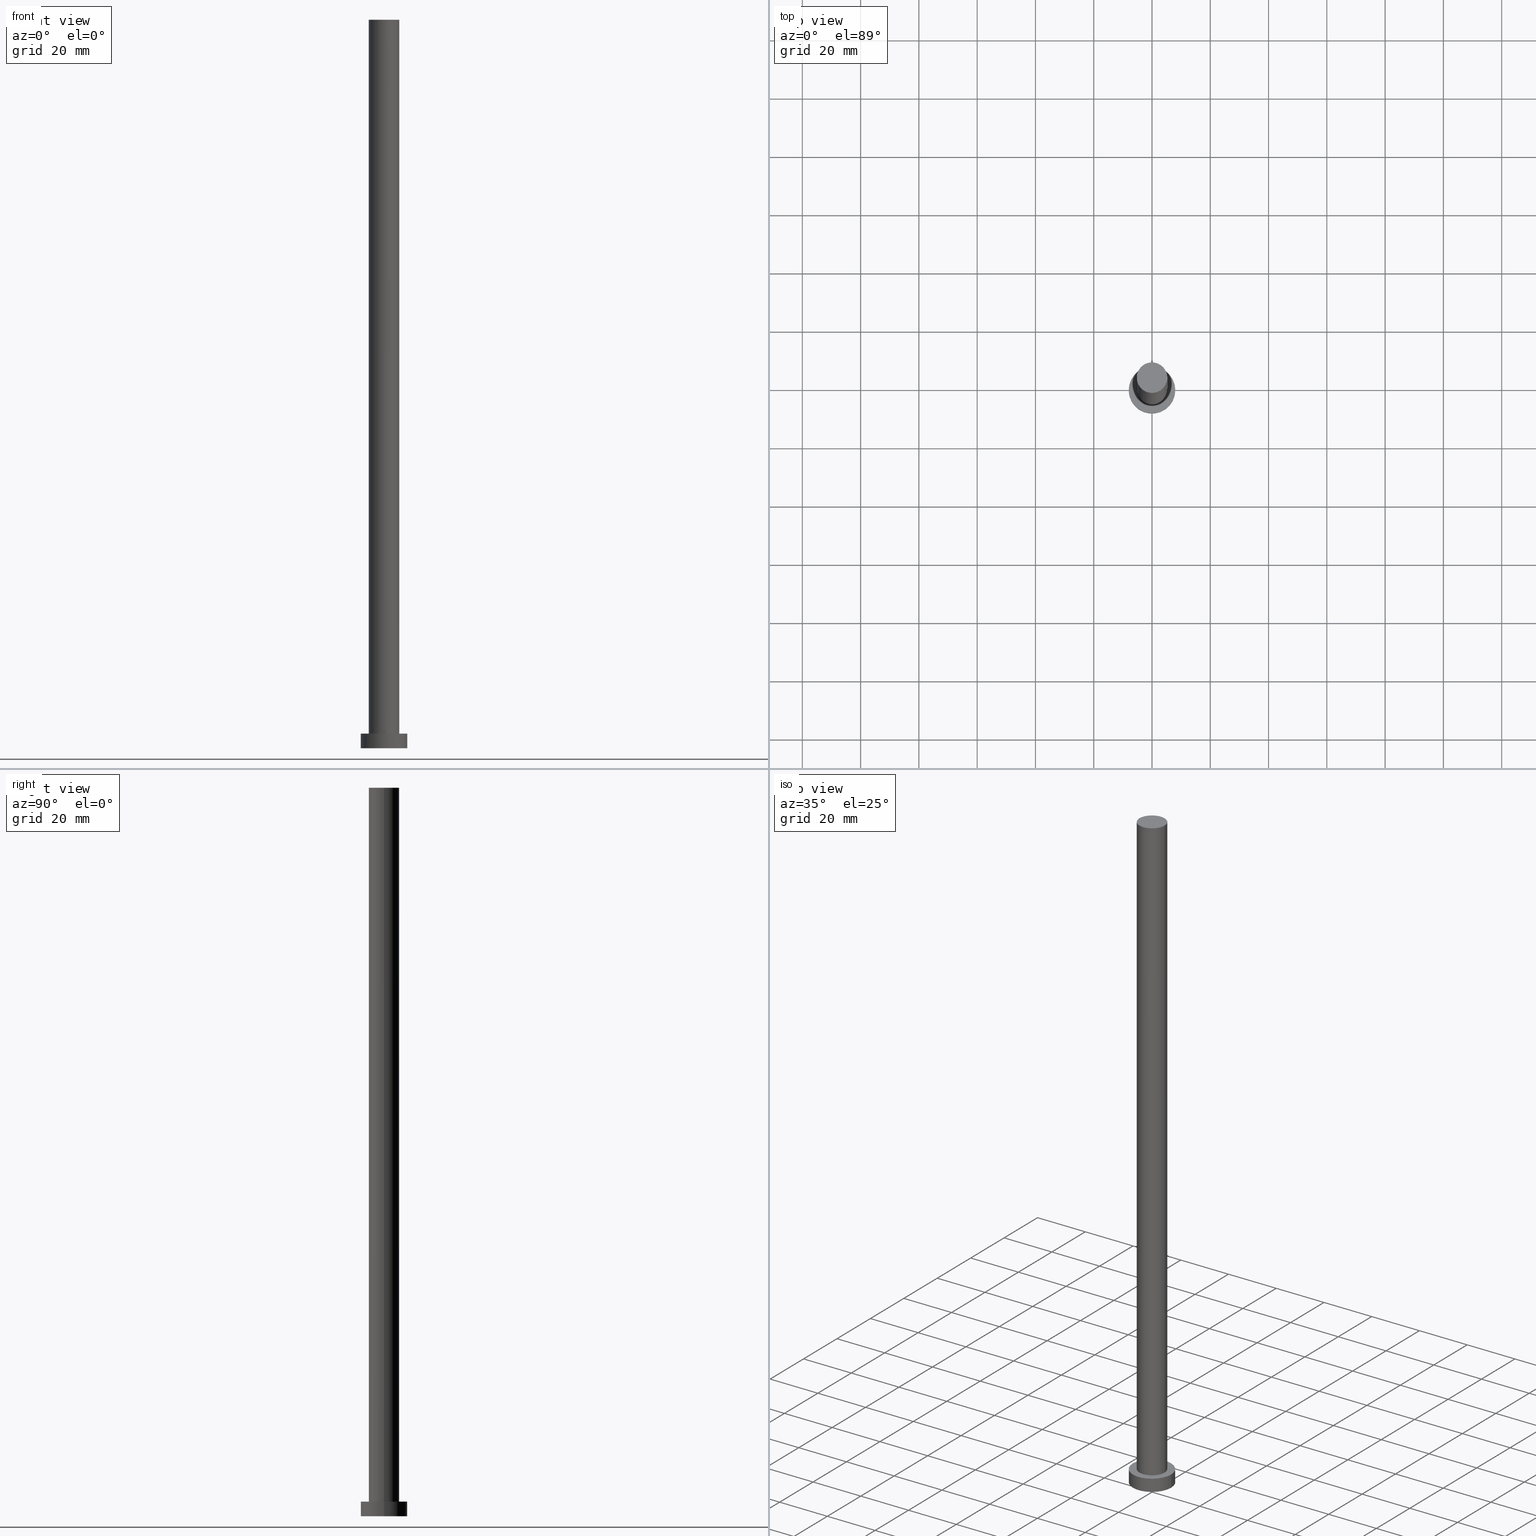
[diagram: canonical four-view strip — front | top / right | iso, engineering-drawing reading convention]
A machine part, canonical four-view strip (front | top / right | iso — engineering-drawing reading convention). The complete STEP part file that produces these views, byte-faithful:
ISO-10303-21;
HEADER;
FILE_DESCRIPTION (( 'STEP AP203' ),
    '1' );
FILE_NAME ('3e7c.STEP',
    '2023-02-13T11:11:58',
    ( '' ),
    ( '' ),
    'SwSTEP 2.0',
    'SolidWorks 2019',
    '' );
FILE_SCHEMA (( 'CONFIG_CONTROL_DESIGN' ));
ENDSEC;

DATA;
#1 = APPROVAL_STATUS ( 'not_yet_approved' ) ;
#2 = ORIENTED_EDGE ( 'NONE', *, *, #12, .F. ) ;
#3 = ORIENTED_EDGE ( 'NONE', *, *, #80, .F. ) ;
#4 = ORIENTED_EDGE ( 'NONE', *, *, #190, .F. ) ;
#5 = ORIENTED_EDGE ( 'NONE', *, *, #108, .F. ) ;
#6 = CC_DESIGN_PERSON_AND_ORGANIZATION_ASSIGNMENT ( #73, #109, ( #56 ) ) ;
#7 = FACE_OUTER_BOUND ( 'NONE', #255, .T. ) ;
#8 = CIRCLE ( 'NONE', #232, 5.250000000000000888 ) ;
#9 = DIRECTION ( 'NONE',  ( 0.000000000000000000, 0.000000000000000000, 1.000000000000000000 ) ) ;
#10 = CARTESIAN_POINT ( 'NONE',  ( -5.250000000000000888, 0.000000000000000000, 250.0000000000000000 ) ) ;
#11 = CARTESIAN_POINT ( 'NONE',  ( 5.250000000000000888, 6.429395695523605139E-16, 250.0000000000000000 ) ) ;
#12 = EDGE_CURVE ( 'NONE', #81, #194, #206, .T. ) ;
#13 = APPROVAL ( #110, 'NEUR�EN�' ) ;
#14 = AXIS2_PLACEMENT_3D ( 'NONE', #178, #9, #85 ) ;
#15 = FACE_OUTER_BOUND ( 'NONE', #39, .T. ) ;
#16 = LOCAL_TIME ( 12, 11, 58.00000000000000000, #37 ) ;
#17 = APPLICATION_PROTOCOL_DEFINITION ( 'international standard', 'config_control_design', 1994, #252 ) ;
#18 = COORDINATED_UNIVERSAL_TIME_OFFSET ( 1, 0, .AHEAD. ) ;
#19 = CARTESIAN_POINT ( 'NONE',  ( -5.250000000000000888, 0.000000000000000000, 5.000000000000000000 ) ) ;
#20 = MANIFOLD_SOLID_BREP ( 'P�idat vysunut�m3', #64 ) ;
#21 = ORIENTED_EDGE ( 'NONE', *, *, #48, .F. ) ;
#22 = AXIS2_PLACEMENT_3D ( 'NONE', #164, #131, #55 ) ;
#23 = SHAPE_DEFINITION_REPRESENTATION ( #187, #90 ) ;
#24 = ORIENTED_EDGE ( 'NONE', *, *, #46, .F. ) ;
#25 = ADVANCED_FACE ( 'NONE', ( #199 ), #50, .T. ) ;
#26 = FACE_OUTER_BOUND ( 'NONE', #117, .T. ) ;
#27 = CARTESIAN_POINT ( 'NONE',  ( 0.000000000000000000, 0.000000000000000000, 250.0000000000000000 ) ) ;
#28 = DIRECTION ( 'NONE',  ( -1.000000000000000000, 0.000000000000000000, 0.000000000000000000 ) ) ;
#29 = LOCAL_TIME ( 12, 11, 58.00000000000000000, #236 ) ;
#30 = EDGE_LOOP ( 'NONE', ( #76, #98, #107, #192 ) ) ;
#31 = DIRECTION ( 'NONE',  ( 1.000000000000000000, 0.000000000000000000, 0.000000000000000000 ) ) ;
#32 = CC_DESIGN_DATE_AND_TIME_ASSIGNMENT ( #166, #68, ( #212 ) ) ;
#33 = LOCAL_TIME ( 12, 11, 58.00000000000000000, #18 ) ;
#34 =( NAMED_UNIT ( * ) PLANE_ANGLE_UNIT ( ) SI_UNIT ( $, .RADIAN. ) );
#35 = VECTOR ( 'NONE', #182, 1000.000000000000000 ) ;
#36 = ORIENTED_EDGE ( 'NONE', *, *, #165, .F. ) ;
#37 = COORDINATED_UNIVERSAL_TIME_OFFSET ( 1, 0, .AHEAD. ) ;
#38 = EDGE_LOOP ( 'NONE', ( #132, #100 ) ) ;
#39 = EDGE_LOOP ( 'NONE', ( #3, #21, #174, #58 ) ) ;
#40 = AXIS2_PLACEMENT_3D ( 'NONE', #45, #125, #31 ) ;
#41 = CALENDAR_DATE ( 2023, 13, 2 ) ;
#42 = DIRECTION ( 'NONE',  ( -0.000000000000000000, -0.000000000000000000, -1.000000000000000000 ) ) ;
#43 = AXIS2_PLACEMENT_3D ( 'NONE', #239, #216, #160 ) ;
#44 = FACE_OUTER_BOUND ( 'NONE', #195, .T. ) ;
#45 = CARTESIAN_POINT ( 'NONE',  ( 0.000000000000000000, 0.000000000000000000, 5.000000000000000000 ) ) ;
#46 = EDGE_CURVE ( 'NONE', #194, #81, #114, .T. ) ;
#47 = LINE ( 'NONE', #106, #119 ) ;
#48 = EDGE_CURVE ( 'NONE', #78, #155, #248, .T. ) ;
#49 = AXIS2_PLACEMENT_3D ( 'NONE', #61, #223, #66 ) ;
#50 = CYLINDRICAL_SURFACE ( 'NONE', #158, 5.250000000000000888 ) ;
#51 = CALENDAR_DATE ( 2023, 13, 2 ) ;
#52 = EDGE_CURVE ( 'NONE', #215, #172, #8, .T. ) ;
#53 = DIRECTION ( 'NONE',  ( 1.000000000000000000, 0.000000000000000000, 0.000000000000000000 ) ) ;
#54 = CARTESIAN_POINT ( 'NONE',  ( 5.250000000000000888, 6.429395695523605139E-16, 250.0000000000000000 ) ) ;
#55 = DIRECTION ( 'NONE',  ( -1.000000000000000000, 0.000000000000000000, 0.000000000000000000 ) ) ;
#56 = PRODUCT ( '3e7c', '3e7c', '', ( #146 ) ) ;
#57 = ORIENTED_EDGE ( 'NONE', *, *, #52, .T. ) ;
#58 = ORIENTED_EDGE ( 'NONE', *, *, #12, .T. ) ;
#59 = CALENDAR_DATE ( 2023, 13, 2 ) ;
#60 = EDGE_CURVE ( 'NONE', #155, #78, #148, .T. ) ;
#61 = CARTESIAN_POINT ( 'NONE',  ( 0.000000000000000000, 0.000000000000000000, 0.000000000000000000 ) ) ;
#62 = EDGE_CURVE ( 'NONE', #203, #215, #162, .T. ) ;
#63 = FACE_OUTER_BOUND ( 'NONE', #38, .T. ) ;
#64 = CLOSED_SHELL ( 'NONE', ( #133, #208, #253, #168, #116, #25, #99 ) ) ;
#65 = DIRECTION ( 'NONE',  ( 1.000000000000000000, 0.000000000000000000, 0.000000000000000000 ) ) ;
#66 = DIRECTION ( 'NONE',  ( 1.000000000000000000, 0.000000000000000000, 0.000000000000000000 ) ) ;
#67 = DIRECTION ( 'NONE',  ( 1.000000000000000000, 0.000000000000000000, 0.000000000000000000 ) ) ;
#68 = DATE_TIME_ROLE ( 'creation_date' ) ;
#69 = DIRECTION ( 'NONE',  ( 0.000000000000000000, 0.000000000000000000, 1.000000000000000000 ) ) ;
#70 = PRODUCT_RELATED_PRODUCT_CATEGORY ( 'detail', '', ( #56 ) ) ;
#71 = CIRCLE ( 'NONE', #134, 5.250000000000000888 ) ;
#72 = CC_DESIGN_SECURITY_CLASSIFICATION ( #185, ( #120 ) ) ;
#73 = PERSON_AND_ORGANIZATION ( #144, #217 ) ;
#74 = CC_DESIGN_PERSON_AND_ORGANIZATION_ASSIGNMENT ( #91, #229, ( #212 ) ) ;
#75 = PERSON_AND_ORGANIZATION_ROLE ( 'creator' ) ;
#76 = ORIENTED_EDGE ( 'NONE', *, *, #62, .F. ) ;
#77 = PERSON_AND_ORGANIZATION ( #144, #217 ) ;
#78 = VERTEX_POINT ( 'NONE', #218 ) ;
#79 = VECTOR ( 'NONE', #243, 1000.000000000000000 ) ;
#80 = EDGE_CURVE ( 'NONE', #155, #194, #47, .T. ) ;
#81 = VERTEX_POINT ( 'NONE', #86 ) ;
#82 = CC_DESIGN_PERSON_AND_ORGANIZATION_ASSIGNMENT ( #213, #233, ( #120 ) ) ;
#83 = CARTESIAN_POINT ( 'NONE',  ( 0.000000000000000000, 0.000000000000000000, 5.000000000000000000 ) ) ;
#84 = LINE ( 'NONE', #200, #191 ) ;
#85 = DIRECTION ( 'NONE',  ( 1.000000000000000000, 0.000000000000000000, -0.000000000000000000 ) ) ;
#86 = CARTESIAN_POINT ( 'NONE',  ( -8.000000000000000000, 0.000000000000000000, 0.000000000000000000 ) ) ;
#87 = DESIGN_CONTEXT ( 'detailed design', #252, 'design' ) ;
#88 = APPROVAL_DATE_TIME ( #186, #13 ) ;
#89 = AXIS2_PLACEMENT_3D ( 'NONE', #128, #205, #53 ) ;
#90 = ADVANCED_BREP_SHAPE_REPRESENTATION ( '3e7c', ( #20, #89 ), #197 ) ;
#91 = PERSON_AND_ORGANIZATION ( #144, #217 ) ;
#92 = CARTESIAN_POINT ( 'NONE',  ( 5.250000000000000888, 6.429395695523605139E-16, 5.000000000000000000 ) ) ;
#93 = DIRECTION ( 'NONE',  ( 1.000000000000000000, 0.000000000000000000, 0.000000000000000000 ) ) ;
#94 = AXIS2_PLACEMENT_3D ( 'NONE', #184, #121, #65 ) ;
#95 = CC_DESIGN_DATE_AND_TIME_ASSIGNMENT ( #96, #151, ( #185 ) ) ;
#96 = DATE_AND_TIME ( #41, #152 ) ;
#97 = AXIS2_PLACEMENT_3D ( 'NONE', #247, #189, #149 ) ;
#98 = ORIENTED_EDGE ( 'NONE', *, *, #207, .F. ) ;
#99 = ADVANCED_FACE ( 'NONE', ( #63 ), #122, .T. ) ;
#100 = ORIENTED_EDGE ( 'NONE', *, *, #108, .T. ) ;
#101 = ORIENTED_EDGE ( 'NONE', *, *, #52, .F. ) ;
#102 = AXIS2_PLACEMENT_3D ( 'NONE', #126, #69, #93 ) ;
#103 = PLANE ( 'NONE',  #14 ) ;
#104 = DIRECTION ( 'NONE',  ( 0.000000000000000000, 0.000000000000000000, 1.000000000000000000 ) ) ;
#105 = CARTESIAN_POINT ( 'NONE',  ( -5.250000000000000888, 0.000000000000000000, 250.0000000000000000 ) ) ;
#106 = CARTESIAN_POINT ( 'NONE',  ( 8.000000000000000000, 9.797174393178825657E-16, 5.000000000000000000 ) ) ;
#107 = ORIENTED_EDGE ( 'NONE', *, *, #165, .T. ) ;
#108 = EDGE_CURVE ( 'NONE', #203, #157, #71, .T. ) ;
#109 = PERSON_AND_ORGANIZATION_ROLE ( 'design_owner' ) ;
#110 = APPROVAL_STATUS ( 'not_yet_approved' ) ;
#111 = CC_DESIGN_APPROVAL ( #180, ( #185 ) ) ;
#112 = CYLINDRICAL_SURFACE ( 'NONE', #254, 8.000000000000000000 ) ;
#113 = DATE_AND_TIME ( #211, #16 ) ;
#114 = CIRCLE ( 'NONE', #49, 8.000000000000000000 ) ;
#115 = ORIENTED_EDGE ( 'NONE', *, *, #46, .T. ) ;
#116 = ADVANCED_FACE ( 'NONE', ( #44 ), #219, .F. ) ;
#117 = EDGE_LOOP ( 'NONE', ( #196, #154 ) ) ;
#118 = LINE ( 'NONE', #10, #35 ) ;
#119 = VECTOR ( 'NONE', #242, 1000.000000000000000 ) ;
#120 = PRODUCT_DEFINITION_FORMATION_WITH_SPECIFIED_SOURCE ( 'LIBOVOLN�', '', #56, .NOT_KNOWN. ) ;
#121 = DIRECTION ( 'NONE',  ( 0.000000000000000000, 0.000000000000000000, 1.000000000000000000 ) ) ;
#122 = PLANE ( 'NONE',  #181 ) ;
#123 = CYLINDRICAL_SURFACE ( 'NONE', #221, 5.250000000000000888 ) ;
#124 = APPROVAL_PERSON_ORGANIZATION ( #251, #180, #230 ) ;
#125 = DIRECTION ( 'NONE',  ( 0.000000000000000000, 0.000000000000000000, 1.000000000000000000 ) ) ;
#126 = CARTESIAN_POINT ( 'NONE',  ( 0.000000000000000000, 0.000000000000000000, 5.000000000000000000 ) ) ;
#127 = CC_DESIGN_PERSON_AND_ORGANIZATION_ASSIGNMENT ( #170, #75, ( #120 ) ) ;
#128 = CARTESIAN_POINT ( 'NONE',  ( 0.000000000000000000, 0.000000000000000000, 0.000000000000000000 ) ) ;
#129 = CC_DESIGN_APPROVAL ( #238, ( #120 ) ) ;
#130 = CYLINDRICAL_SURFACE ( 'NONE', #22, 8.000000000000000000 ) ;
#131 = DIRECTION ( 'NONE',  ( -0.000000000000000000, -0.000000000000000000, -1.000000000000000000 ) ) ;
#132 = ORIENTED_EDGE ( 'NONE', *, *, #207, .T. ) ;
#133 = ADVANCED_FACE ( 'NONE', ( #7 ), #123, .T. ) ;
#134 = AXIS2_PLACEMENT_3D ( 'NONE', #159, #179, #67 ) ;
#135 = APPROVAL_DATE_TIME ( #210, #180 ) ;
#136 = CC_DESIGN_APPROVAL ( #13, ( #212 ) ) ;
#137 = ORIENTED_EDGE ( 'NONE', *, *, #62, .T. ) ;
#138 = DIRECTION ( 'NONE',  ( 0.000000000000000000, 0.000000000000000000, 1.000000000000000000 ) ) ;
#139 = DIRECTION ( 'NONE',  ( 0.000000000000000000, 0.000000000000000000, 1.000000000000000000 ) ) ;
#140 = DIRECTION ( 'NONE',  ( 1.000000000000000000, 0.000000000000000000, -0.000000000000000000 ) ) ;
#141 = DIRECTION ( 'NONE',  ( -0.000000000000000000, -0.000000000000000000, -1.000000000000000000 ) ) ;
#142 = DIRECTION ( 'NONE',  ( -1.000000000000000000, 0.000000000000000000, 0.000000000000000000 ) ) ;
#143 = CALENDAR_DATE ( 2023, 13, 2 ) ;
#144 = PERSON ( 'NEUR�EN�', 'NEUR�EN�', 'NEUR�EN�', ('NEUR�EN�'), ('NEUR�EN�'), ('NEUR�EN�') ) ;
#145 = COORDINATED_UNIVERSAL_TIME_OFFSET ( 1, 0, .AHEAD. ) ;
#146 = MECHANICAL_CONTEXT ( 'NONE', #202, 'mechanical' ) ;
#147 = EDGE_CURVE ( 'NONE', #78, #81, #84, .T. ) ;
#148 = CIRCLE ( 'NONE', #40, 8.000000000000000000 ) ;
#149 = DIRECTION ( 'NONE',  ( 1.000000000000000000, 0.000000000000000000, 0.000000000000000000 ) ) ;
#150 = PERSON_AND_ORGANIZATION ( #144, #217 ) ;
#151 = DATE_TIME_ROLE ( 'classification_date' ) ;
#152 = LOCAL_TIME ( 12, 11, 58.00000000000000000, #235 ) ;
#153 = CC_DESIGN_PERSON_AND_ORGANIZATION_ASSIGNMENT ( #77, #156, ( #185 ) ) ;
#154 = ORIENTED_EDGE ( 'NONE', *, *, #60, .T. ) ;
#155 = VERTEX_POINT ( 'NONE', #183 ) ;
#156 = PERSON_AND_ORGANIZATION_ROLE ( 'classification_officer' ) ;
#157 = VERTEX_POINT ( 'NONE', #105 ) ;
#158 = AXIS2_PLACEMENT_3D ( 'NONE', #27, #141, #142 ) ;
#159 = CARTESIAN_POINT ( 'NONE',  ( 0.000000000000000000, 0.000000000000000000, 250.0000000000000000 ) ) ;
#160 = DIRECTION ( 'NONE',  ( 1.000000000000000000, 0.000000000000000000, -0.000000000000000000 ) ) ;
#161 = CARTESIAN_POINT ( 'NONE',  ( 0.000000000000000000, 0.000000000000000000, 5.000000000000000000 ) ) ;
#162 = LINE ( 'NONE', #11, #79 ) ;
#163 = DIRECTION ( 'NONE',  ( 1.000000000000000000, 0.000000000000000000, 0.000000000000000000 ) ) ;
#164 = CARTESIAN_POINT ( 'NONE',  ( 0.000000000000000000, 0.000000000000000000, 5.000000000000000000 ) ) ;
#165 = EDGE_CURVE ( 'NONE', #157, #172, #118, .T. ) ;
#166 = DATE_AND_TIME ( #51, #33 ) ;
#167 = DIRECTION ( 'NONE',  ( -0.000000000000000000, -0.000000000000000000, -1.000000000000000000 ) ) ;
#168 = ADVANCED_FACE ( 'NONE', ( #198, #26 ), #103, .T. ) ;
#169 = SECURITY_CLASSIFICATION_LEVEL ( 'unclassified' ) ;
#170 = PERSON_AND_ORGANIZATION ( #144, #217 ) ;
#171 = APPROVAL_PERSON_ORGANIZATION ( #150, #13, #188 ) ;
#172 = VERTEX_POINT ( 'NONE', #19 ) ;
#173 = APPROVAL_DATE_TIME ( #113, #238 ) ;
#174 = ORIENTED_EDGE ( 'NONE', *, *, #147, .T. ) ;
#175 = ORIENTED_EDGE ( 'NONE', *, *, #147, .F. ) ;
#176 = CIRCLE ( 'NONE', #102, 5.250000000000000888 ) ;
#177 = EDGE_LOOP ( 'NONE', ( #234, #231, #115, #175 ) ) ;
#178 = CARTESIAN_POINT ( 'NONE',  ( 0.000000000000000000, 0.000000000000000000, 5.000000000000000000 ) ) ;
#179 = DIRECTION ( 'NONE',  ( 0.000000000000000000, 0.000000000000000000, 1.000000000000000000 ) ) ;
#180 = APPROVAL ( #214, 'NEUR�EN�' ) ;
#181 = AXIS2_PLACEMENT_3D ( 'NONE', #241, #139, #140 ) ;
#182 = DIRECTION ( 'NONE',  ( -0.000000000000000000, -0.000000000000000000, -1.000000000000000000 ) ) ;
#183 = CARTESIAN_POINT ( 'NONE',  ( 8.000000000000000000, 9.797174393178825657E-16, 5.000000000000000000 ) ) ;
#184 = CARTESIAN_POINT ( 'NONE',  ( 0.000000000000000000, 0.000000000000000000, 0.000000000000000000 ) ) ;
#185 = SECURITY_CLASSIFICATION ( '', '', #169 ) ;
#186 = DATE_AND_TIME ( #143, #249 ) ;
#187 = PRODUCT_DEFINITION_SHAPE ( 'NONE', 'NONE',  #212 ) ;
#188 = APPROVAL_ROLE ( '' ) ;
#189 = DIRECTION ( 'NONE',  ( 0.000000000000000000, 0.000000000000000000, 1.000000000000000000 ) ) ;
#190 = EDGE_CURVE ( 'NONE', #172, #215, #176, .T. ) ;
#191 = VECTOR ( 'NONE', #42, 1000.000000000000000 ) ;
#192 = ORIENTED_EDGE ( 'NONE', *, *, #190, .T. ) ;
#193 = APPROVAL_ROLE ( '' ) ;
#194 = VERTEX_POINT ( 'NONE', #209 ) ;
#195 = EDGE_LOOP ( 'NONE', ( #2, #24 ) ) ;
#196 = ORIENTED_EDGE ( 'NONE', *, *, #48, .T. ) ;
#197 =( GEOMETRIC_REPRESENTATION_CONTEXT ( 3 ) GLOBAL_UNCERTAINTY_ASSIGNED_CONTEXT ( ( #222 ) ) GLOBAL_UNIT_ASSIGNED_CONTEXT ( ( #204, #34, #246 ) ) REPRESENTATION_CONTEXT ( 'NONE', 'WORKASPACE' ) );
#198 = FACE_BOUND ( 'NONE', #237, .T. ) ;
#199 = FACE_OUTER_BOUND ( 'NONE', #30, .T. ) ;
#200 = CARTESIAN_POINT ( 'NONE',  ( -8.000000000000000000, 0.000000000000000000, 5.000000000000000000 ) ) ;
#201 = CARTESIAN_POINT ( 'NONE',  ( 0.000000000000000000, 0.000000000000000000, 250.0000000000000000 ) ) ;
#202 = APPLICATION_CONTEXT ( 'configuration controlled 3d designs of mechanical parts and assemblies' ) ;
#203 = VERTEX_POINT ( 'NONE', #54 ) ;
#204 =( LENGTH_UNIT ( ) NAMED_UNIT ( * ) SI_UNIT ( .MILLI., .METRE. ) );
#205 = DIRECTION ( 'NONE',  ( 0.000000000000000000, 0.000000000000000000, 1.000000000000000000 ) ) ;
#206 = CIRCLE ( 'NONE', #94, 8.000000000000000000 ) ;
#207 = EDGE_CURVE ( 'NONE', #157, #203, #244, .T. ) ;
#208 = ADVANCED_FACE ( 'NONE', ( #228 ), #112, .T. ) ;
#209 = CARTESIAN_POINT ( 'NONE',  ( 8.000000000000000000, 9.797174393178825657E-16, 0.000000000000000000 ) ) ;
#210 = DATE_AND_TIME ( #59, #29 ) ;
#211 = CALENDAR_DATE ( 2023, 13, 2 ) ;
#212 = PRODUCT_DEFINITION ( 'NEZN�M�', '', #120, #87 ) ;
#213 = PERSON_AND_ORGANIZATION ( #144, #217 ) ;
#214 = APPROVAL_STATUS ( 'not_yet_approved' ) ;
#215 = VERTEX_POINT ( 'NONE', #92 ) ;
#216 = DIRECTION ( 'NONE',  ( 0.000000000000000000, 0.000000000000000000, 1.000000000000000000 ) ) ;
#217 = ORGANIZATION ( 'NEUR�EN�', 'NEUR�EN�', '' ) ;
#218 = CARTESIAN_POINT ( 'NONE',  ( -8.000000000000000000, 0.000000000000000000, 5.000000000000000000 ) ) ;
#219 = PLANE ( 'NONE',  #43 ) ;
#220 = DIRECTION ( 'NONE',  ( 1.000000000000000000, 0.000000000000000000, 0.000000000000000000 ) ) ;
#221 = AXIS2_PLACEMENT_3D ( 'NONE', #201, #240, #28 ) ;
#222 = UNCERTAINTY_MEASURE_WITH_UNIT (LENGTH_MEASURE( 1.000000000000000082E-05 ), #204, 'distance_accuracy_value', 'NONE');
#223 = DIRECTION ( 'NONE',  ( 0.000000000000000000, 0.000000000000000000, 1.000000000000000000 ) ) ;
#224 = APPROVAL_PERSON_ORGANIZATION ( #225, #238, #193 ) ;
#225 = PERSON_AND_ORGANIZATION ( #144, #217 ) ;
#226 = CARTESIAN_POINT ( 'NONE',  ( 0.000000000000000000, 0.000000000000000000, 5.000000000000000000 ) ) ;
#227 = AXIS2_PLACEMENT_3D ( 'NONE', #161, #138, #220 ) ;
#228 = FACE_OUTER_BOUND ( 'NONE', #177, .T. ) ;
#229 = PERSON_AND_ORGANIZATION_ROLE ( 'creator' ) ;
#230 = APPROVAL_ROLE ( '' ) ;
#231 = ORIENTED_EDGE ( 'NONE', *, *, #80, .T. ) ;
#232 = AXIS2_PLACEMENT_3D ( 'NONE', #83, #104, #163 ) ;
#233 = PERSON_AND_ORGANIZATION_ROLE ( 'design_supplier' ) ;
#234 = ORIENTED_EDGE ( 'NONE', *, *, #60, .F. ) ;
#235 = COORDINATED_UNIVERSAL_TIME_OFFSET ( 1, 0, .AHEAD. ) ;
#236 = COORDINATED_UNIVERSAL_TIME_OFFSET ( 1, 0, .AHEAD. ) ;
#237 = EDGE_LOOP ( 'NONE', ( #4, #101 ) ) ;
#238 = APPROVAL ( #1, 'NEUR�EN�' ) ;
#239 = CARTESIAN_POINT ( 'NONE',  ( 0.000000000000000000, 0.000000000000000000, 0.000000000000000000 ) ) ;
#240 = DIRECTION ( 'NONE',  ( -0.000000000000000000, -0.000000000000000000, -1.000000000000000000 ) ) ;
#241 = CARTESIAN_POINT ( 'NONE',  ( 0.000000000000000000, 0.000000000000000000, 250.0000000000000000 ) ) ;
#242 = DIRECTION ( 'NONE',  ( -0.000000000000000000, -0.000000000000000000, -1.000000000000000000 ) ) ;
#243 = DIRECTION ( 'NONE',  ( -0.000000000000000000, -0.000000000000000000, -1.000000000000000000 ) ) ;
#244 = CIRCLE ( 'NONE', #97, 5.250000000000000888 ) ;
#245 = DIRECTION ( 'NONE',  ( -1.000000000000000000, 0.000000000000000000, 0.000000000000000000 ) ) ;
#246 =( NAMED_UNIT ( * ) SI_UNIT ( $, .STERADIAN. ) SOLID_ANGLE_UNIT ( ) );
#247 = CARTESIAN_POINT ( 'NONE',  ( 0.000000000000000000, 0.000000000000000000, 250.0000000000000000 ) ) ;
#248 = CIRCLE ( 'NONE', #227, 8.000000000000000000 ) ;
#249 = LOCAL_TIME ( 12, 11, 58.00000000000000000, #145 ) ;
#250 = APPLICATION_PROTOCOL_DEFINITION ( 'international standard', 'config_control_design', 1994, #202 ) ;
#251 = PERSON_AND_ORGANIZATION ( #144, #217 ) ;
#252 = APPLICATION_CONTEXT ( 'configuration controlled 3d designs of mechanical parts and assemblies' ) ;
#253 = ADVANCED_FACE ( 'NONE', ( #15 ), #130, .T. ) ;
#254 = AXIS2_PLACEMENT_3D ( 'NONE', #226, #167, #245 ) ;
#255 = EDGE_LOOP ( 'NONE', ( #5, #137, #57, #36 ) ) ;
ENDSEC;
END-ISO-10303-21;
